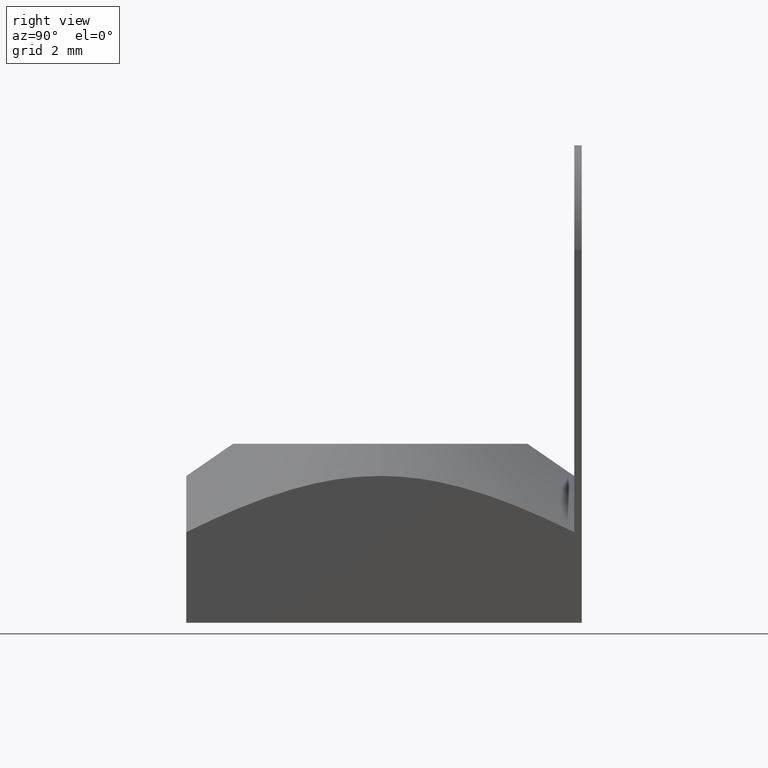
[diagram: clean part render]
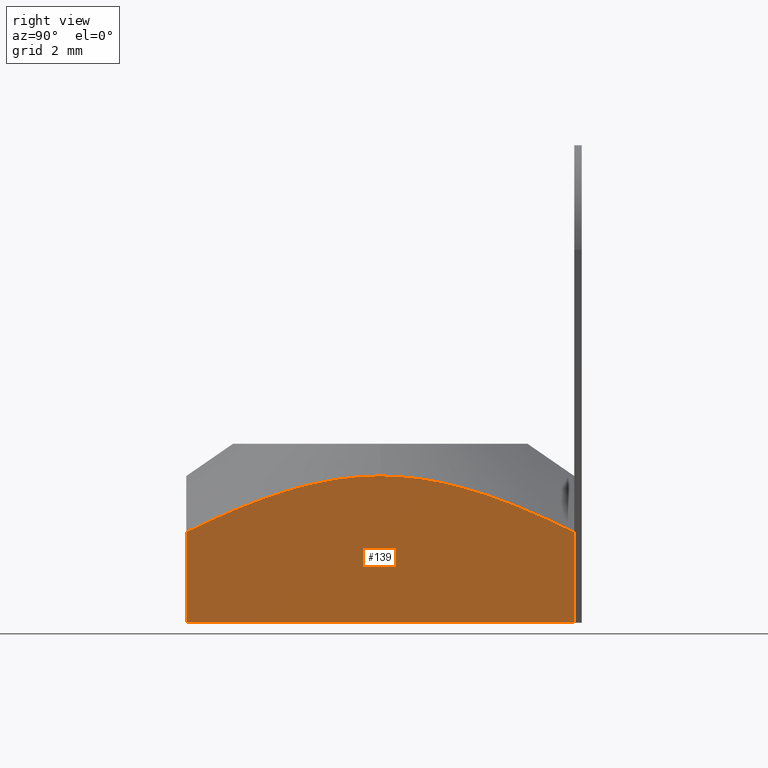
[diagram: same view with one face highlighted and labeled with its STEP entity id]
A machine part, right view. The second image highlights one B-rep face of the part: STEP entity #139.
In plain terms, the highlighted planar face has unit normal (-1, 0, 0).
Its self-contained STEP definition (entity closure, byte-faithful):
#57=CARTESIAN_POINT('',(6.499999999974079,-6.499999999974079,0.0));
#58=VERTEX_POINT('',#57);
#65=CARTESIAN_POINT('',(6.499999999974079,-6.499999999974079,3.034437679604906));
#66=VERTEX_POINT('',#65);
#67=CARTESIAN_POINT('',(6.499999999974079,-6.499999999974079,3.034437679604906));
#68=DIRECTION('',(0.0,0.0,-1.0));
#69=VECTOR('',#68,3.034437679604906);
#70=LINE('',#67,#69);
#71=EDGE_CURVE('',#66,#58,#70,.T.);
#93=CARTESIAN_POINT('',(6.499999999974079,-6.499999999974079,6.0));
#94=DIRECTION('',(-1.0,0.0,0.0));
#95=DIRECTION('',(0.0,1.0,0.0));
#96=AXIS2_PLACEMENT_3D('',#93,#94,#95);
#97=PLANE('',#96);
#98=CARTESIAN_POINT('',(6.499999999974079,6.499999999974079,0.0));
#99=VERTEX_POINT('',#98);
#100=CARTESIAN_POINT('',(6.499999999974079,-6.499999999973916,0.0));
#101=DIRECTION('',(0.0,1.0,0.0));
#102=VECTOR('',#101,12.999999999947995);
#103=LINE('',#100,#102);
#104=EDGE_CURVE('',#58,#99,#103,.T.);
#105=ORIENTED_EDGE('',*,*,#104,.T.);
#106=CARTESIAN_POINT('',(6.499999999974079,6.499999999974079,3.034437679604906));
#107=VERTEX_POINT('',#106);
#108=CARTESIAN_POINT('',(6.499999999974079,6.499999999974079,3.034437679604906));
#109=DIRECTION('',(0.0,0.0,-1.0));
#110=VECTOR('',#109,3.034437679604906);
#111=LINE('',#108,#110);
#112=EDGE_CURVE('',#107,#99,#111,.T.);
#113=ORIENTED_EDGE('',*,*,#112,.F.);
#114=CARTESIAN_POINT('',(6.499999999974079,0.0,4.919668161812596));
#115=VERTEX_POINT('',#114);
#116=CARTESIAN_POINT('',(6.499999999974079,6.499999999974079,3.034437679604906));
#117=CARTESIAN_POINT('',(6.499999999974079,5.882877524653850,3.339988284347234));
#118=CARTESIAN_POINT('',(6.499999999974534,4.809413192198008,3.835425012968807));
#119=CARTESIAN_POINT('',(6.499999999973852,3.186651324770082,4.430488239795752));
#120=CARTESIAN_POINT('',(6.499999999974989,1.644250270507200,4.819853950623344));
#121=CARTESIAN_POINT('',(6.499999999974079,0.548660503574865,4.919668161812595));
#122=CARTESIAN_POINT('',(6.499999999974079,0.0,4.919668161812595));
#123=B_SPLINE_CURVE_WITH_KNOTS('',3,(#116,#117,#118,#119,#120,#121,#122),.UNSPECIFIED.,.F.,.U.,(4,1,1,1,4),(0.0,2.066340973610342,3.543609594805800,5.181100455068718,6.829066620924860),.UNSPECIFIED.);
#124=EDGE_CURVE('',#107,#115,#123,.T.);
#125=ORIENTED_EDGE('',*,*,#124,.T.);
#126=CARTESIAN_POINT('',(6.499999999974079,0.0,4.919668161812595));
#127=CARTESIAN_POINT('',(6.499999999974079,-0.548660503574865,4.919668161812595));
#128=CARTESIAN_POINT('',(6.499999999974762,-1.644250270504926,4.819853950623344));
#129=CARTESIAN_POINT('',(6.499999999973852,-3.186651324770082,4.430488239795752));
#130=CARTESIAN_POINT('',(6.499999999974534,-4.809413192196644,3.835425012968807));
#131=CARTESIAN_POINT('',(6.499999999974079,-5.882877524653850,3.339988284347234));
#132=CARTESIAN_POINT('',(6.499999999974079,-6.499999999974079,3.034437679604906));
#133=B_SPLINE_CURVE_WITH_KNOTS('',3,(#126,#127,#128,#129,#130,#131,#132),.UNSPECIFIED.,.F.,.U.,(4,1,1,1,4),(0.0,1.647966165856141,3.285457026119058,4.762725647314515,6.829066620924857),.UNSPECIFIED.);
#134=EDGE_CURVE('',#115,#66,#133,.T.);
#135=ORIENTED_EDGE('',*,*,#134,.T.);
#136=ORIENTED_EDGE('',*,*,#71,.T.);
#137=EDGE_LOOP('',(#105,#113,#125,#135,#136));
#138=FACE_OUTER_BOUND('',#137,.T.);
#139=ADVANCED_FACE('',(#138),#97,.F.);